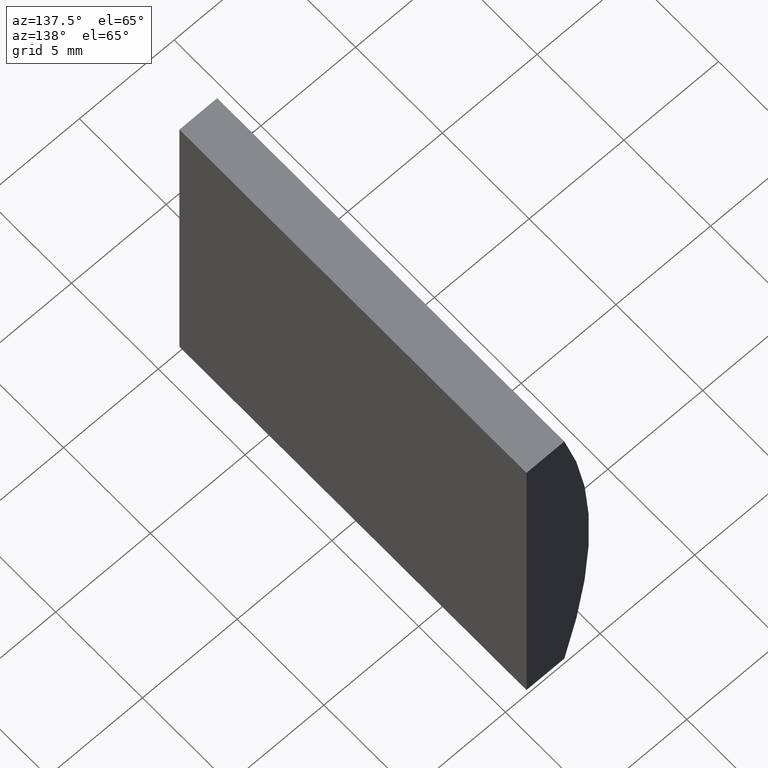
[diagram: clean part render]
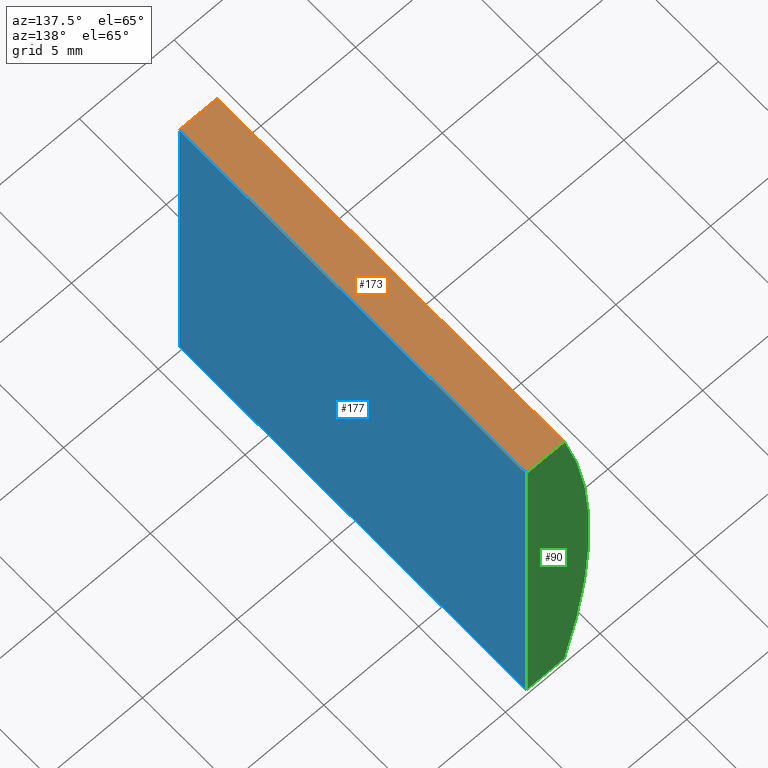
[diagram: same view with three faces highlighted in distinct colors, each labeled with its STEP entity id]
A machine part, auxiliary view with three faces highlighted in distinct colors.
Their STEP definitions:

[orange] entity #173 — the highlighted planar face has unit normal (0, 0, -1).
#3 = VECTOR ( 'NONE', #66, 1000.000000000000000 ) ;
#11 = ORIENTED_EDGE ( 'NONE', *, *, #197, .T. ) ;
#14 = VERTEX_POINT ( 'NONE', #141 ) ;
#40 = DIRECTION ( 'NONE',  ( -1.000000000000000000, 0.0000000000000000000, -0.0000000000000000000 ) ) ;
#43 = AXIS2_PLACEMENT_3D ( 'NONE', #180, #124, #40 ) ;
#44 = DIRECTION ( 'NONE',  ( -0.0000000000000000000, -1.000000000000000000, -0.0000000000000000000 ) ) ;
#45 = VERTEX_POINT ( 'NONE', #69 ) ;
#46 = VECTOR ( 'NONE', #44, 1000.000000000000000 ) ;
#47 = EDGE_CURVE ( 'NONE', #199, #130, #134, .T. ) ;
#55 = VECTOR ( 'NONE', #70, 1000.000000000000000 ) ;
#66 = DIRECTION ( 'NONE',  ( 1.000000000000000000, 0.0000000000000000000, 0.0000000000000000000 ) ) ;
#69 = CARTESIAN_POINT ( 'NONE',  ( -31.11479566514873700, 20.00000000000000000, 10.00000000000000000 ) ) ;
#70 = DIRECTION ( 'NONE',  ( 1.000000000000000000, 0.0000000000000000000, 0.0000000000000000000 ) ) ;
#81 = ORIENTED_EDGE ( 'NONE', *, *, #190, .F. ) ;
#94 = CARTESIAN_POINT ( 'NONE',  ( -33.11329443411465000, 20.00000000000000000, 10.00000000000000000 ) ) ;
#100 = CARTESIAN_POINT ( 'NONE',  ( -33.11329443411465000, 20.00000000000000000, 10.00000000000000000 ) ) ;
#103 = VECTOR ( 'NONE', #128, 1000.000000000000000 ) ;
#118 = ORIENTED_EDGE ( 'NONE', *, *, #194, .F. ) ;
#120 = FACE_OUTER_BOUND ( 'NONE', #142, .T. ) ;
#124 = DIRECTION ( 'NONE',  ( 0.0000000000000000000, 0.0000000000000000000, -1.000000000000000000 ) ) ;
#128 = DIRECTION ( 'NONE',  ( -0.0000000000000000000, -1.000000000000000000, -0.0000000000000000000 ) ) ;
#130 = VERTEX_POINT ( 'NONE', #192 ) ;
#134 = LINE ( 'NONE', #100, #46 ) ;
#141 = CARTESIAN_POINT ( 'NONE',  ( -31.11479566514873700, 0.0000000000000000000, 10.00000000000000000 ) ) ;
#142 = EDGE_LOOP ( 'NONE', ( #11, #118, #81, #171 ) ) ;
#145 = CARTESIAN_POINT ( 'NONE',  ( -31.11479566514873700, 20.00000000000000000, 10.00000000000000000 ) ) ;
#155 = LINE ( 'NONE', #145, #103 ) ;
#156 = CARTESIAN_POINT ( 'NONE',  ( -33.11329443411465000, 0.0000000000000000000, 10.00000000000000000 ) ) ;
#167 = LINE ( 'NONE', #94, #55 ) ;
#171 = ORIENTED_EDGE ( 'NONE', *, *, #47, .T. ) ;
#173 = ADVANCED_FACE ( 'NONE', ( #120 ), #182, .F. ) ;
#179 = CARTESIAN_POINT ( 'NONE',  ( -33.11329443411465000, 20.00000000000000000, 10.00000000000000000 ) ) ;
#180 = CARTESIAN_POINT ( 'NONE',  ( -33.11329443411465000, 20.00000000000000000, 10.00000000000000000 ) ) ;
#182 = PLANE ( 'NONE',  #43 ) ;
#190 = EDGE_CURVE ( 'NONE', #199, #45, #167, .T. ) ;
#192 = CARTESIAN_POINT ( 'NONE',  ( -33.11329443411465000, 0.0000000000000000000, 10.00000000000000000 ) ) ;
#194 = EDGE_CURVE ( 'NONE', #45, #14, #155, .T. ) ;
#197 = EDGE_CURVE ( 'NONE', #130, #14, #198, .T. ) ;
#198 = LINE ( 'NONE', #156, #3 ) ;
#199 = VERTEX_POINT ( 'NONE', #179 ) ;

[blue] entity #177 — the highlighted planar face has unit normal (-1, 0, 0).
#5 = CARTESIAN_POINT ( 'NONE',  ( -31.11479566514874100, 20.00000000000000000, -9.999999999999992900 ) ) ;
#9 = CARTESIAN_POINT ( 'NONE',  ( -31.11479566514874100, 20.00000000000000000, -9.999999999999992900 ) ) ;
#14 = VERTEX_POINT ( 'NONE', #141 ) ;
#18 = ORIENTED_EDGE ( 'NONE', *, *, #22, .T. ) ;
#21 = ORIENTED_EDGE ( 'NONE', *, *, #170, .F. ) ;
#22 = EDGE_CURVE ( 'NONE', #14, #187, #148, .T. ) ;
#24 = CARTESIAN_POINT ( 'NONE',  ( -31.11479566514874100, 20.00000000000000000, -9.999999999999992900 ) ) ;
#28 = LINE ( 'NONE', #5, #169 ) ;
#37 = DIRECTION ( 'NONE',  ( -0.0000000000000000000, -1.000000000000000000, -0.0000000000000000000 ) ) ;
#41 = VECTOR ( 'NONE', #201, 1000.000000000000000 ) ;
#45 = VERTEX_POINT ( 'NONE', #69 ) ;
#59 = EDGE_CURVE ( 'NONE', #45, #172, #107, .T. ) ;
#69 = CARTESIAN_POINT ( 'NONE',  ( -31.11479566514873700, 20.00000000000000000, 10.00000000000000000 ) ) ;
#72 = CARTESIAN_POINT ( 'NONE',  ( -31.11479566514874100, 0.0000000000000000000, -9.999999999999992900 ) ) ;
#85 = DIRECTION ( 'NONE',  ( -3.469446951953615200E-016, -0.0000000000000000000, -1.000000000000000000 ) ) ;
#93 = DIRECTION ( 'NONE',  ( -1.000000000000000000, 0.0000000000000000000, 3.469446951953615200E-016 ) ) ;
#97 = VECTOR ( 'NONE', #85, 1000.000000000000000 ) ;
#103 = VECTOR ( 'NONE', #128, 1000.000000000000000 ) ;
#104 = ORIENTED_EDGE ( 'NONE', *, *, #194, .T. ) ;
#107 = LINE ( 'NONE', #9, #41 ) ;
#112 = CARTESIAN_POINT ( 'NONE',  ( -31.11479566514874100, 0.0000000000000000000, -9.999999999999992900 ) ) ;
#122 = CARTESIAN_POINT ( 'NONE',  ( -31.11479566514874100, 20.00000000000000000, -9.999999999999992900 ) ) ;
#123 = ORIENTED_EDGE ( 'NONE', *, *, #59, .F. ) ;
#127 = FACE_OUTER_BOUND ( 'NONE', #168, .T. ) ;
#128 = DIRECTION ( 'NONE',  ( -0.0000000000000000000, -1.000000000000000000, -0.0000000000000000000 ) ) ;
#139 = AXIS2_PLACEMENT_3D ( 'NONE', #122, #93, #163 ) ;
#141 = CARTESIAN_POINT ( 'NONE',  ( -31.11479566514873700, 0.0000000000000000000, 10.00000000000000000 ) ) ;
#145 = CARTESIAN_POINT ( 'NONE',  ( -31.11479566514873700, 20.00000000000000000, 10.00000000000000000 ) ) ;
#148 = LINE ( 'NONE', #72, #97 ) ;
#155 = LINE ( 'NONE', #145, #103 ) ;
#163 = DIRECTION ( 'NONE',  ( 3.469446951953615200E-016, 0.0000000000000000000, 1.000000000000000000 ) ) ;
#168 = EDGE_LOOP ( 'NONE', ( #18, #21, #123, #104 ) ) ;
#169 = VECTOR ( 'NONE', #37, 1000.000000000000000 ) ;
#170 = EDGE_CURVE ( 'NONE', #172, #187, #28, .T. ) ;
#172 = VERTEX_POINT ( 'NONE', #24 ) ;
#177 = ADVANCED_FACE ( 'NONE', ( #127 ), #191, .F. ) ;
#187 = VERTEX_POINT ( 'NONE', #112 ) ;
#191 = PLANE ( 'NONE',  #139 ) ;
#194 = EDGE_CURVE ( 'NONE', #45, #14, #155, .T. ) ;
#201 = DIRECTION ( 'NONE',  ( -3.469446951953615200E-016, -0.0000000000000000000, -1.000000000000000000 ) ) ;

[green] entity #90 — the highlighted planar face has unit normal (0, 1, 0).
#9 = CARTESIAN_POINT ( 'NONE',  ( -31.11479566514874100, 20.00000000000000000, -9.999999999999992900 ) ) ;
#12 = EDGE_LOOP ( 'NONE', ( #132, #143, #78, #101 ) ) ;
#16 = PLANE ( 'NONE',  #63 ) ;
#20 = CARTESIAN_POINT ( 'NONE',  ( -33.11329443411465000, 20.00000000000000000, -10.00000000000000000 ) ) ;
#24 = CARTESIAN_POINT ( 'NONE',  ( -31.11479566514874100, 20.00000000000000000, -9.999999999999992900 ) ) ;
#35 = DIRECTION ( 'NONE',  ( 0.0000000000000000000, 0.0000000000000000000, 1.000000000000000000 ) ) ;
#41 = VECTOR ( 'NONE', #201, 1000.000000000000000 ) ;
#45 = VERTEX_POINT ( 'NONE', #69 ) ;
#54 = DIRECTION ( 'NONE',  ( 0.0000000000000000000, 1.000000000000000000, 0.0000000000000000000 ) ) ;
#55 = VECTOR ( 'NONE', #70, 1000.000000000000000 ) ;
#56 = FACE_OUTER_BOUND ( 'NONE', #12, .T. ) ;
#59 = EDGE_CURVE ( 'NONE', #45, #172, #107, .T. ) ;
#60 = EDGE_CURVE ( 'NONE', #172, #204, #119, .T. ) ;
#63 = AXIS2_PLACEMENT_3D ( 'NONE', #121, #54, #110 ) ;
#67 = CIRCLE ( 'NONE', #185, 38.78000000000000100 ) ;
#69 = CARTESIAN_POINT ( 'NONE',  ( -31.11479566514873700, 20.00000000000000000, 10.00000000000000000 ) ) ;
#70 = DIRECTION ( 'NONE',  ( 1.000000000000000000, 0.0000000000000000000, 0.0000000000000000000 ) ) ;
#76 = VECTOR ( 'NONE', #91, 1000.000000000000000 ) ;
#78 = ORIENTED_EDGE ( 'NONE', *, *, #59, .T. ) ;
#83 = CARTESIAN_POINT ( 'NONE',  ( 4.355204334851265500, 20.00000000000000000, 4.286263797015675000E-017 ) ) ;
#90 = ADVANCED_FACE ( 'NONE', ( #56 ), #16, .T. ) ;
#91 = DIRECTION ( 'NONE',  ( -1.000000000000000000, -0.0000000000000000000, -3.472053128908184100E-015 ) ) ;
#94 = CARTESIAN_POINT ( 'NONE',  ( -33.11329443411465000, 20.00000000000000000, 10.00000000000000000 ) ) ;
#95 = CARTESIAN_POINT ( 'NONE',  ( -33.11329443411465000, 20.00000000000000000, -10.00000000000000000 ) ) ;
#101 = ORIENTED_EDGE ( 'NONE', *, *, #60, .T. ) ;
#107 = LINE ( 'NONE', #9, #41 ) ;
#110 = DIRECTION ( 'NONE',  ( 0.0000000000000000000, -0.0000000000000000000, 1.000000000000000000 ) ) ;
#119 = LINE ( 'NONE', #20, #76 ) ;
#121 = CARTESIAN_POINT ( 'NONE',  ( 4.355204334851265500, 20.00000000000000000, 4.286263797015675000E-017 ) ) ;
#132 = ORIENTED_EDGE ( 'NONE', *, *, #189, .T. ) ;
#140 = DIRECTION ( 'NONE',  ( 0.0000000000000000000, 1.000000000000000000, 0.0000000000000000000 ) ) ;
#143 = ORIENTED_EDGE ( 'NONE', *, *, #190, .T. ) ;
#167 = LINE ( 'NONE', #94, #55 ) ;
#172 = VERTEX_POINT ( 'NONE', #24 ) ;
#179 = CARTESIAN_POINT ( 'NONE',  ( -33.11329443411465000, 20.00000000000000000, 10.00000000000000000 ) ) ;
#185 = AXIS2_PLACEMENT_3D ( 'NONE', #83, #140, #35 ) ;
#189 = EDGE_CURVE ( 'NONE', #204, #199, #67, .T. ) ;
#190 = EDGE_CURVE ( 'NONE', #199, #45, #167, .T. ) ;
#199 = VERTEX_POINT ( 'NONE', #179 ) ;
#201 = DIRECTION ( 'NONE',  ( -3.469446951953615200E-016, -0.0000000000000000000, -1.000000000000000000 ) ) ;
#204 = VERTEX_POINT ( 'NONE', #95 ) ;